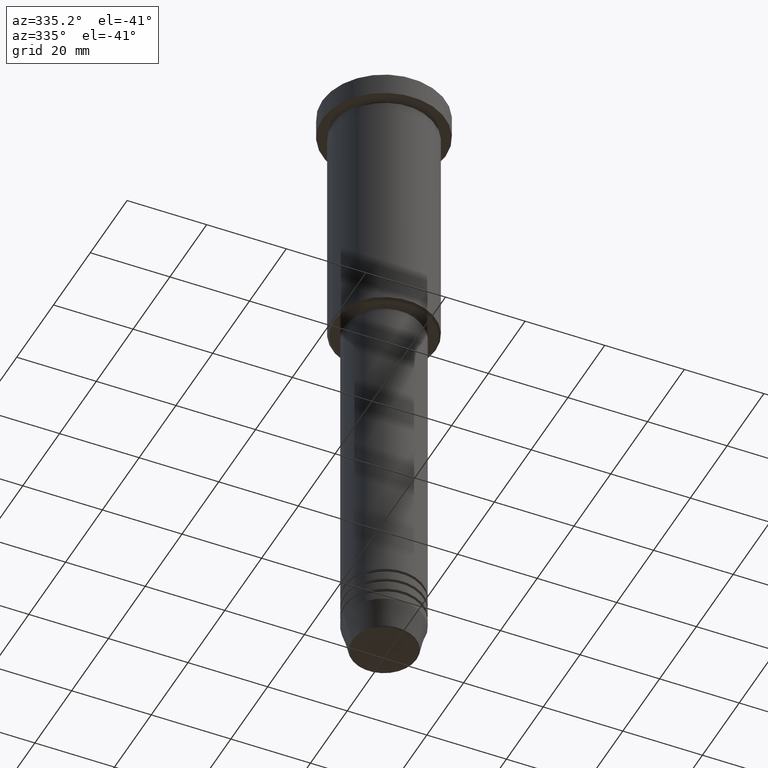
[diagram: clean part render]
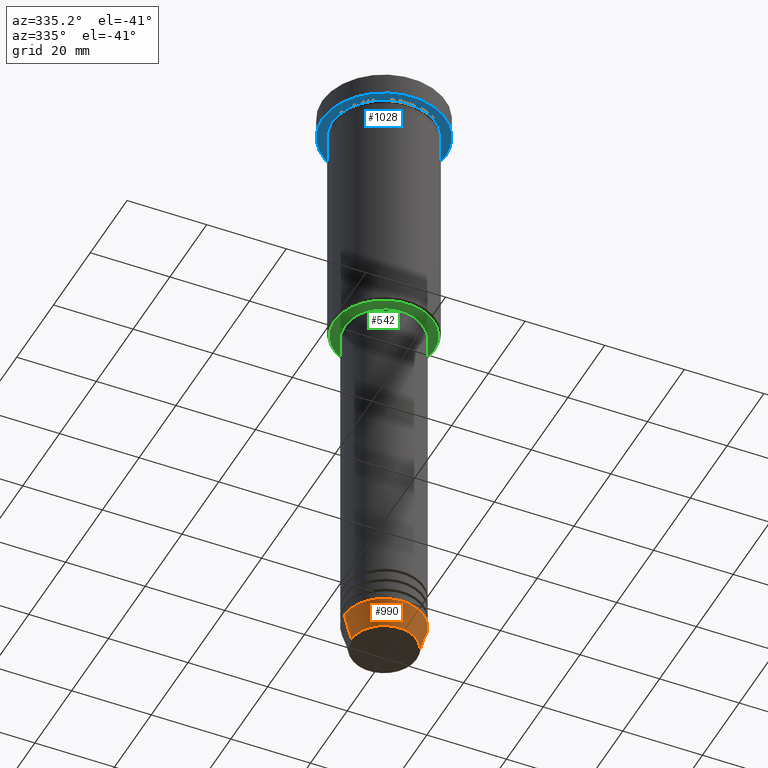
[diagram: same view with three faces highlighted in distinct colors, each labeled with its STEP entity id]
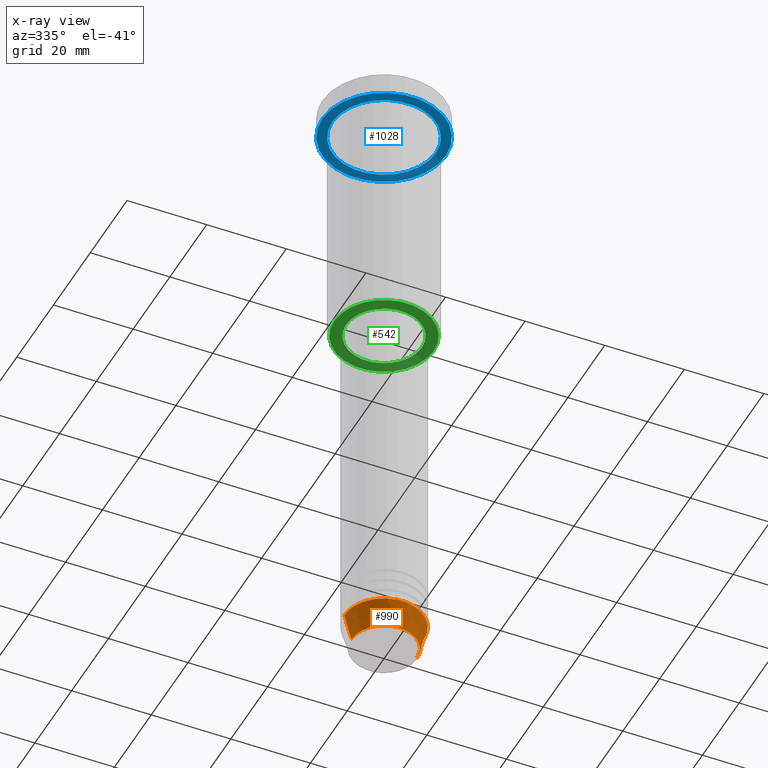
[diagram: x-ray of the same camera — body ghosted, the three highlighted faces saturated]
A machine part, auxiliary view with three faces highlighted in distinct colors.
The next image is the same camera in x-ray (body ghosted, the three faces saturated) — at least one of them is partly hidden behind the body in this view.
Their STEP definitions:

[orange] entity #990 — the highlighted conical surface has half-angle 15 deg.
#52 = EDGE_LOOP ( 'NONE', ( #517, #161, #700, #176 ) ) ;
#57 = AXIS2_PLACEMENT_3D ( 'NONE', #1093, #638, #1001 ) ;
#86 = VECTOR ( 'NONE', #212, 1000.000000000000000 ) ;
#135 = DIRECTION ( 'NONE',  ( -0.000000000000000000, -0.000000000000000000, 1.000000000000000000 ) ) ;
#161 = ORIENTED_EDGE ( 'NONE', *, *, #744, .T. ) ;
#170 = CARTESIAN_POINT ( 'NONE',  ( 0.000000000000000000, 0.000000000000000000, -160.6294095225512137 ) ) ;
#176 = ORIENTED_EDGE ( 'NONE', *, *, #1092, .F. ) ;
#196 = LINE ( 'NONE', #301, #86 ) ;
#212 = DIRECTION ( 'NONE',  ( -0.2588190451025213501, 3.169619151431772337E-17, 0.9659258262890680902 ) ) ;
#222 = EDGE_CURVE ( 'NONE', #658, #597, #196, .T. ) ;
#254 = DIRECTION ( 'NONE',  ( -0.000000000000000000, -0.000000000000000000, 1.000000000000000000 ) ) ;
#301 = CARTESIAN_POINT ( 'NONE',  ( -10.00000000000000000, 1.224646799147353256E-15, -154.0000000000000000 ) ) ;
#304 = CARTESIAN_POINT ( 'NONE',  ( 8.223655072137198374, 0.000000000000000000, -160.6294095225512137 ) ) ;
#346 = EDGE_CURVE ( 'NONE', #1089, #537, #701, .T. ) ;
#369 = CARTESIAN_POINT ( 'NONE',  ( 10.00000000000000000, 0.000000000000000000, -154.0000000000000000 ) ) ;
#435 = CARTESIAN_POINT ( 'NONE',  ( 10.00000000000000000, 0.000000000000000000, -154.0000000000000000 ) ) ;
#505 = VECTOR ( 'NONE', #705, 1000.000000000000000 ) ;
#517 = ORIENTED_EDGE ( 'NONE', *, *, #222, .F. ) ;
#526 = AXIS2_PLACEMENT_3D ( 'NONE', #170, #254, #963 ) ;
#537 = VERTEX_POINT ( 'NONE', #369 ) ;
#597 = VERTEX_POINT ( 'NONE', #1034 ) ;
#638 = DIRECTION ( 'NONE',  ( -0.000000000000000000, -0.000000000000000000, 1.000000000000000000 ) ) ;
#658 = VERTEX_POINT ( 'NONE', #1050 ) ;
#670 = CONICAL_SURFACE ( 'NONE', #57, 10.00000000000000000, 0.2617993877991500740 ) ;
#700 = ORIENTED_EDGE ( 'NONE', *, *, #346, .T. ) ;
#701 = LINE ( 'NONE', #435, #505 ) ;
#705 = DIRECTION ( 'NONE',  ( 0.2588190451025213501, 0.000000000000000000, 0.9659258262890680902 ) ) ;
#744 = EDGE_CURVE ( 'NONE', #658, #1089, #1046, .T. ) ;
#811 = FACE_OUTER_BOUND ( 'NONE', #52, .T. ) ;
#939 = DIRECTION ( 'NONE',  ( 1.000000000000000000, 0.000000000000000000, 0.000000000000000000 ) ) ;
#950 = CARTESIAN_POINT ( 'NONE',  ( 0.000000000000000000, 0.000000000000000000, -154.0000000000000000 ) ) ;
#963 = DIRECTION ( 'NONE',  ( 1.000000000000000000, 0.000000000000000000, 0.000000000000000000 ) ) ;
#988 = AXIS2_PLACEMENT_3D ( 'NONE', #950, #135, #939 ) ;
#990 = ADVANCED_FACE ( 'NONE', ( #811 ), #670, .T. ) ;
#1001 = DIRECTION ( 'NONE',  ( 1.000000000000000000, 0.000000000000000000, 0.000000000000000000 ) ) ;
#1034 = CARTESIAN_POINT ( 'NONE',  ( -10.00000000000000000, 1.224646799147353256E-15, -154.0000000000000000 ) ) ;
#1046 = CIRCLE ( 'NONE', #526, 8.223655072137198374 ) ;
#1050 = CARTESIAN_POINT ( 'NONE',  ( -8.223655072137198374, 1.115877042642912448E-15, -160.6294095225512137 ) ) ;
#1069 = CIRCLE ( 'NONE', #988, 10.00000000000000000 ) ;
#1089 = VERTEX_POINT ( 'NONE', #304 ) ;
#1092 = EDGE_CURVE ( 'NONE', #597, #537, #1069, .T. ) ;
#1093 = CARTESIAN_POINT ( 'NONE',  ( 0.000000000000000000, 0.000000000000000000, -154.0000000000000000 ) ) ;

[blue] entity #1028 — the highlighted planar face has unit normal (0, 0, -1).
#20 = CARTESIAN_POINT ( 'NONE',  ( 0.000000000000000000, 0.000000000000000000, -5.999999999999995559 ) ) ;
#71 = EDGE_CURVE ( 'NONE', #768, #652, #1121, .T. ) ;
#89 = CARTESIAN_POINT ( 'NONE',  ( 0.000000000000000000, 0.000000000000000000, -5.999999999999995559 ) ) ;
#109 = AXIS2_PLACEMENT_3D ( 'NONE', #89, #649, #177 ) ;
#115 = DIRECTION ( 'NONE',  ( 0.000000000000000000, 0.000000000000000000, -1.000000000000000000 ) ) ;
#132 = CIRCLE ( 'NONE', #109, 15.50000000000000000 ) ;
#139 = CARTESIAN_POINT ( 'NONE',  ( 13.00000000000000000, 1.592040838891559095E-15, -5.999999999999994671 ) ) ;
#162 = CARTESIAN_POINT ( 'NONE',  ( -13.00000000000000000, 0.000000000000000000, -5.999999999999994671 ) ) ;
#177 = DIRECTION ( 'NONE',  ( 1.000000000000000000, 0.000000000000000000, 0.000000000000000000 ) ) ;
#178 = DIRECTION ( 'NONE',  ( -0.000000000000000000, -0.000000000000000000, 1.000000000000000000 ) ) ;
#226 = CARTESIAN_POINT ( 'NONE',  ( -15.50000000000000000, 1.898202538678397557E-15, -5.999999999999995559 ) ) ;
#231 = DIRECTION ( 'NONE',  ( -0.000000000000000000, -0.000000000000000000, 1.000000000000000000 ) ) ;
#262 = CARTESIAN_POINT ( 'NONE',  ( 0.000000000000000000, 0.000000000000000000, -5.999999999999995559 ) ) ;
#388 = ORIENTED_EDGE ( 'NONE', *, *, #440, .F. ) ;
#415 = ORIENTED_EDGE ( 'NONE', *, *, #1044, .F. ) ;
#440 = EDGE_CURVE ( 'NONE', #958, #1021, #132, .T. ) ;
#458 = EDGE_CURVE ( 'NONE', #652, #768, #1101, .T. ) ;
#478 = PLANE ( 'NONE',  #951 ) ;
#484 = DIRECTION ( 'NONE',  ( 1.000000000000000000, 0.000000000000000000, 0.000000000000000000 ) ) ;
#491 = CIRCLE ( 'NONE', #1103, 15.50000000000000000 ) ;
#504 = EDGE_LOOP ( 'NONE', ( #388, #415 ) ) ;
#518 = DIRECTION ( 'NONE',  ( -1.000000000000000000, 0.000000000000000000, 0.000000000000000000 ) ) ;
#547 = AXIS2_PLACEMENT_3D ( 'NONE', #20, #920, #1100 ) ;
#557 = CARTESIAN_POINT ( 'NONE',  ( 15.50000000000000000, 0.000000000000000000, -5.999999999999995559 ) ) ;
#575 = EDGE_LOOP ( 'NONE', ( #1119, #712 ) ) ;
#649 = DIRECTION ( 'NONE',  ( -0.000000000000000000, -0.000000000000000000, 1.000000000000000000 ) ) ;
#652 = VERTEX_POINT ( 'NONE', #139 ) ;
#712 = ORIENTED_EDGE ( 'NONE', *, *, #458, .T. ) ;
#747 = DIRECTION ( 'NONE',  ( -1.000000000000000000, 0.000000000000000000, -0.000000000000000000 ) ) ;
#768 = VERTEX_POINT ( 'NONE', #162 ) ;
#845 = CARTESIAN_POINT ( 'NONE',  ( 0.000000000000000000, 15.50000000000000000, -5.999999999999995559 ) ) ;
#920 = DIRECTION ( 'NONE',  ( -0.000000000000000000, -0.000000000000000000, 1.000000000000000000 ) ) ;
#932 = FACE_OUTER_BOUND ( 'NONE', #504, .T. ) ;
#945 = CARTESIAN_POINT ( 'NONE',  ( 0.000000000000000000, 0.000000000000000000, -5.999999999999995559 ) ) ;
#951 = AXIS2_PLACEMENT_3D ( 'NONE', #845, #115, #747 ) ;
#957 = FACE_BOUND ( 'NONE', #575, .T. ) ;
#958 = VERTEX_POINT ( 'NONE', #557 ) ;
#1021 = VERTEX_POINT ( 'NONE', #226 ) ;
#1028 = ADVANCED_FACE ( 'NONE', ( #957, #932 ), #478, .T. ) ;
#1044 = EDGE_CURVE ( 'NONE', #1021, #958, #491, .T. ) ;
#1100 = DIRECTION ( 'NONE',  ( -1.000000000000000000, 0.000000000000000000, 0.000000000000000000 ) ) ;
#1101 = CIRCLE ( 'NONE', #547, 13.00000000000000000 ) ;
#1103 = AXIS2_PLACEMENT_3D ( 'NONE', #945, #231, #484 ) ;
#1119 = ORIENTED_EDGE ( 'NONE', *, *, #71, .T. ) ;
#1121 = CIRCLE ( 'NONE', #1140, 13.00000000000000000 ) ;
#1140 = AXIS2_PLACEMENT_3D ( 'NONE', #262, #178, #518 ) ;

[green] entity #542 — the highlighted planar face has unit normal (0, 0, -1).
#11 = CIRCLE ( 'NONE', #686, 9.500000000000000000 ) ;
#46 = CARTESIAN_POINT ( 'NONE',  ( 0.000000000000000000, 0.000000000000000000, -65.99999999999998579 ) ) ;
#100 = DIRECTION ( 'NONE',  ( -0.000000000000000000, -0.000000000000000000, 1.000000000000000000 ) ) ;
#154 = VERTEX_POINT ( 'NONE', #789 ) ;
#164 = EDGE_CURVE ( 'NONE', #154, #938, #907, .T. ) ;
#171 = AXIS2_PLACEMENT_3D ( 'NONE', #345, #693, #338 ) ;
#188 = DIRECTION ( 'NONE',  ( -1.000000000000000000, 0.000000000000000000, -0.000000000000000000 ) ) ;
#191 = CARTESIAN_POINT ( 'NONE',  ( 0.000000000000000000, 0.000000000000000000, -65.99999999999998579 ) ) ;
#206 = ORIENTED_EDGE ( 'NONE', *, *, #1052, .T. ) ;
#279 = FACE_OUTER_BOUND ( 'NONE', #780, .T. ) ;
#328 = AXIS2_PLACEMENT_3D ( 'NONE', #191, #100, #650 ) ;
#338 = DIRECTION ( 'NONE',  ( -1.000000000000000000, 0.000000000000000000, 0.000000000000000000 ) ) ;
#341 = DIRECTION ( 'NONE',  ( -0.000000000000000000, -0.000000000000000000, 1.000000000000000000 ) ) ;
#344 = AXIS2_PLACEMENT_3D ( 'NONE', #993, #538, #188 ) ;
#345 = CARTESIAN_POINT ( 'NONE',  ( 0.000000000000000000, 0.000000000000000000, -65.99999999999998579 ) ) ;
#367 = CARTESIAN_POINT ( 'NONE',  ( 9.500000000000000000, 0.000000000000000000, -65.99999999999998579 ) ) ;
#393 = ORIENTED_EDGE ( 'NONE', *, *, #1148, .T. ) ;
#405 = DIRECTION ( 'NONE',  ( -1.000000000000000000, 0.000000000000000000, 0.000000000000000000 ) ) ;
#418 = EDGE_CURVE ( 'NONE', #938, #154, #11, .T. ) ;
#538 = DIRECTION ( 'NONE',  ( 0.000000000000000000, 0.000000000000000000, -1.000000000000000000 ) ) ;
#542 = ADVANCED_FACE ( 'NONE', ( #279, #1005 ), #1017, .T. ) ;
#650 = DIRECTION ( 'NONE',  ( 1.000000000000000000, 0.000000000000000000, 0.000000000000000000 ) ) ;
#686 = AXIS2_PLACEMENT_3D ( 'NONE', #1163, #341, #1068 ) ;
#693 = DIRECTION ( 'NONE',  ( 0.000000000000000000, 0.000000000000000000, -1.000000000000000000 ) ) ;
#733 = CARTESIAN_POINT ( 'NONE',  ( 12.49999999999998401, 0.000000000000000000, -65.99999999999998579 ) ) ;
#754 = ORIENTED_EDGE ( 'NONE', *, *, #418, .T. ) ;
#780 = EDGE_LOOP ( 'NONE', ( #393, #206 ) ) ;
#789 = CARTESIAN_POINT ( 'NONE',  ( -9.500000000000000000, 1.163414459189985485E-15, -65.99999999999998579 ) ) ;
#822 = EDGE_LOOP ( 'NONE', ( #754, #1003 ) ) ;
#860 = DIRECTION ( 'NONE',  ( 0.000000000000000000, 0.000000000000000000, -1.000000000000000000 ) ) ;
#873 = CIRCLE ( 'NONE', #1162, 12.49999999999998401 ) ;
#907 = CIRCLE ( 'NONE', #328, 9.500000000000000000 ) ;
#938 = VERTEX_POINT ( 'NONE', #367 ) ;
#979 = VERTEX_POINT ( 'NONE', #733 ) ;
#993 = CARTESIAN_POINT ( 'NONE',  ( 0.000000000000000000, 13.00000000000000000, -65.99999999999998579 ) ) ;
#1003 = ORIENTED_EDGE ( 'NONE', *, *, #164, .T. ) ;
#1005 = FACE_BOUND ( 'NONE', #822, .T. ) ;
#1017 = PLANE ( 'NONE',  #344 ) ;
#1052 = EDGE_CURVE ( 'NONE', #1117, #979, #873, .T. ) ;
#1068 = DIRECTION ( 'NONE',  ( 1.000000000000000000, 0.000000000000000000, 0.000000000000000000 ) ) ;
#1073 = CARTESIAN_POINT ( 'NONE',  ( -12.49999999999998401, 1.561424668912874125E-15, -65.99999999999998579 ) ) ;
#1117 = VERTEX_POINT ( 'NONE', #1073 ) ;
#1148 = EDGE_CURVE ( 'NONE', #979, #1117, #1181, .T. ) ;
#1162 = AXIS2_PLACEMENT_3D ( 'NONE', #46, #860, #405 ) ;
#1163 = CARTESIAN_POINT ( 'NONE',  ( 0.000000000000000000, 0.000000000000000000, -65.99999999999998579 ) ) ;
#1181 = CIRCLE ( 'NONE', #171, 12.49999999999998401 ) ;